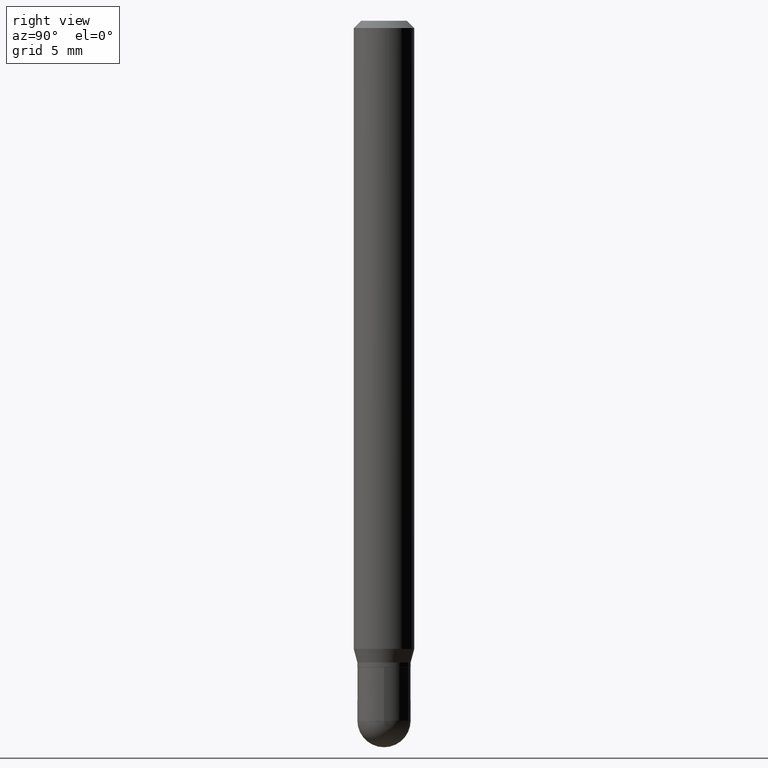
[diagram: clean part render]
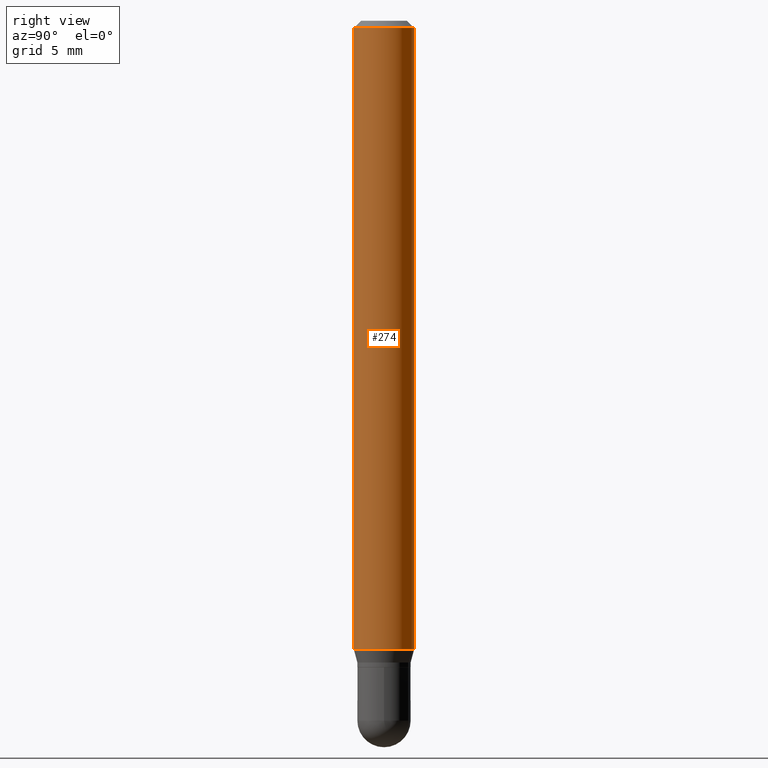
[diagram: same view with one face highlighted and labeled with its STEP entity id]
A machine part, right view. The second image highlights one B-rep face of the part: STEP entity #274.
In plain terms, the highlighted cylindrical surface (edge-blend (fillet) strip) has radius 1.5875 mm, axis along (-0, 0, 1).
Its self-contained STEP definition (entity closure, byte-faithful):
#3 = DIRECTION ( 'NONE',  ( -2.445371144208507908E-29, 3.491621196352252256E-15, 1.000000000000000000 ) ) ;
#43 = DIRECTION ( 'NONE',  ( -6.982962677686265922E-15, -1.000000000000000000, 3.491621196352252256E-15 ) ) ;
#52 = CARTESIAN_POINT ( 'NONE',  ( 4.440892098500943678E-16, 0.06249999999999548972, -1.297009618943233633 ) ) ;
#79 = DIRECTION ( 'NONE',  ( -2.445371144208507908E-29, 3.491621196352252256E-15, 1.000000000000000000 ) ) ;
#89 = LINE ( 'NONE', #476, #99 ) ;
#99 = VECTOR ( 'NONE', #125, 39.37007874015748143 ) ;
#101 = CARTESIAN_POINT ( 'NONE',  ( 4.440892098500625669E-16, 0.06250000000000000000, -2.182263247720157660E-16 ) ) ;
#103 = LINE ( 'NONE', #101, #424 ) ;
#104 = VERTEX_POINT ( 'NONE', #398 ) ;
#125 = DIRECTION ( 'NONE',  ( -2.445371144208507908E-29, 3.491621196352251862E-15, 1.000000000000000000 ) ) ;
#164 = DIRECTION ( 'NONE',  ( -6.982962677686265922E-15, -1.000000000000000000, 3.483106191921935554E-15 ) ) ;
#183 = ORIENTED_EDGE ( 'NONE', *, *, #224, .F. ) ;
#199 = CIRCLE ( 'NONE', #317, 0.06250000000000000000 ) ;
#224 = EDGE_CURVE ( 'NONE', #456, #104, #199, .T. ) ;
#253 = DIRECTION ( 'NONE',  ( -2.445371144208507908E-29, 3.491621196352251862E-15, 1.000000000000000000 ) ) ;
#255 = CARTESIAN_POINT ( 'NONE',  ( -4.364351673553597698E-16, -0.06250000000000451028, -1.297009618943233189 ) ) ;
#262 = EDGE_LOOP ( 'NONE', ( #403, #427, #183, #409 ) ) ;
#274 = ADVANCED_FACE ( 'NONE', ( #277 ), #408, .T. ) ;
#277 = FACE_OUTER_BOUND ( 'NONE', #262, .T. ) ;
#290 = CARTESIAN_POINT ( 'NONE',  ( -4.364351673553912750E-16, -0.06250000000000005551, -0.01499999999999979128 ) ) ;
#317 = AXIS2_PLACEMENT_3D ( 'NONE', #435, #79, #164 ) ;
#363 = VERTEX_POINT ( 'NONE', #52 ) ;
#370 = AXIS2_PLACEMENT_3D ( 'NONE', #488, #371, #455 ) ;
#371 = DIRECTION ( 'NONE',  ( -2.445371144208507908E-29, 3.491621196352252256E-15, 1.000000000000000000 ) ) ;
#384 = EDGE_CURVE ( 'NONE', #442, #456, #89, .T. ) ;
#398 = CARTESIAN_POINT ( 'NONE',  ( 4.440892098500945650E-16, 0.06249999999999995143, -0.01500000000000022669 ) ) ;
#403 = ORIENTED_EDGE ( 'NONE', *, *, #428, .T. ) ;
#408 = CYLINDRICAL_SURFACE ( 'NONE', #484, 0.06250000000000000000 ) ;
#409 = ORIENTED_EDGE ( 'NONE', *, *, #384, .F. ) ;
#424 = VECTOR ( 'NONE', #253, 39.37007874015748143 ) ;
#427 = ORIENTED_EDGE ( 'NONE', *, *, #480, .T. ) ;
#428 = EDGE_CURVE ( 'NONE', #442, #363, #510, .T. ) ;
#435 = CARTESIAN_POINT ( 'NONE',  ( 3.668056716312763876E-31, -5.237431794528382255E-17, -0.01500000000000000812 ) ) ;
#442 = VERTEX_POINT ( 'NONE', #255 ) ;
#455 = DIRECTION ( 'NONE',  ( -6.982962677686265922E-15, -1.000000000000000000, 4.370956789862821150E-15 ) ) ;
#456 = VERTEX_POINT ( 'NONE', #290 ) ;
#476 = CARTESIAN_POINT ( 'NONE',  ( -4.364351673553916201E-16, -0.06250000000000000000, 2.182263247720157660E-16 ) ) ;
#480 = EDGE_CURVE ( 'NONE', #363, #104, #103, .T. ) ;
#484 = AXIS2_PLACEMENT_3D ( 'NONE', #486, #3, #43 ) ;
#486 = CARTESIAN_POINT ( 'NONE',  ( 0.000000000000000000, 0.000000000000000000, 0.000000000000000000 ) ) ;
#488 = CARTESIAN_POINT ( 'NONE',  ( 3.171669895924655731E-29, -4.528666277374951115E-15, -1.297009618943233411 ) ) ;
#510 = CIRCLE ( 'NONE', #370, 0.06250000000000000000 ) ;